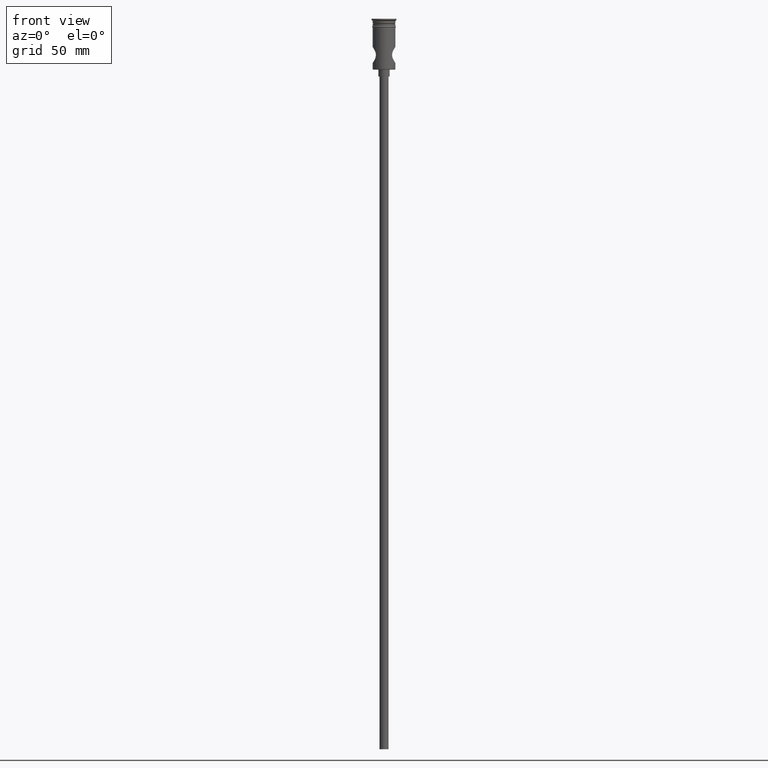
[diagram: clean part render]
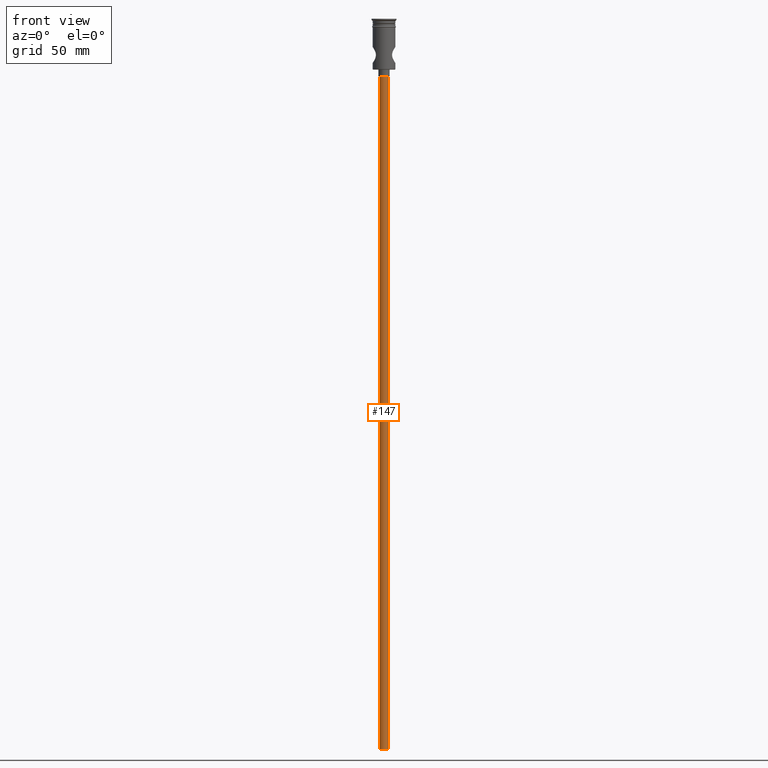
[diagram: same view with one face highlighted and labeled with its STEP entity id]
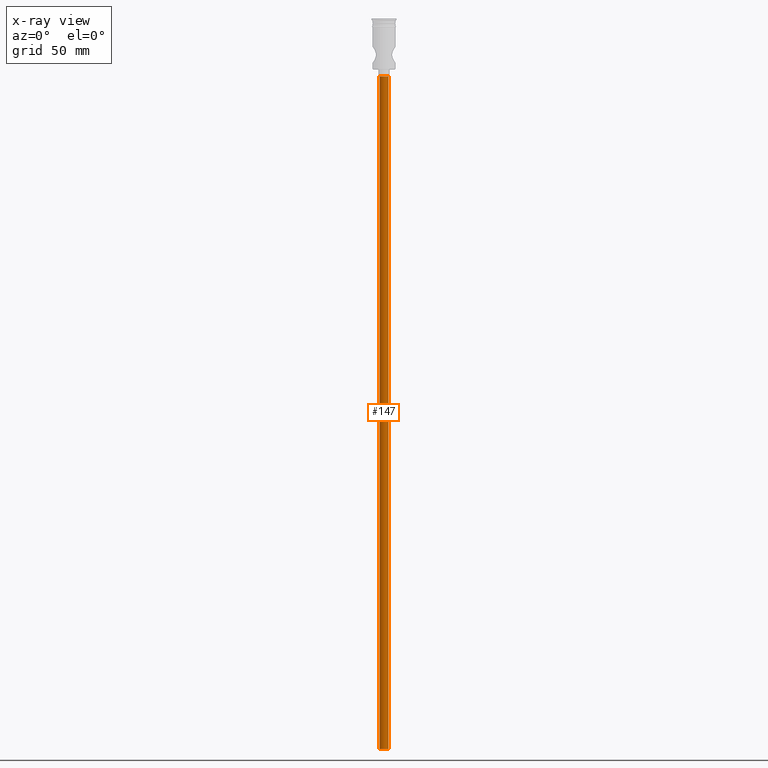
[diagram: x-ray of the same camera — body ghosted, the highlighted face saturated]
A machine part, front view. The second image highlights one B-rep face of the part: STEP entity #147.
The next image is the same camera in x-ray: the body ghosted, the highlighted face saturated — about 0% of this face is hidden behind the body in this view.
In plain terms, the highlighted cylindrical surface (edge-blend (fillet) strip) has radius 2 mm, axis along (-0, -0, 1).
Its self-contained STEP definition (entity closure, byte-faithful):
#14 = LINE ( 'NONE', #908, #407 ) ;
#21 = CARTESIAN_POINT ( 'NONE',  ( -2.000000000000000000, 2.449293598294706414E-16, -322.5000000000000000 ) ) ;
#137 = VECTOR ( 'NONE', #1257, 1000.000000000000000 ) ;
#147 = ADVANCED_FACE ( 'NONE', ( #311 ), #883, .T. ) ;
#176 = CIRCLE ( 'NONE', #519, 2.000000000000000000 ) ;
#216 = VERTEX_POINT ( 'NONE', #801 ) ;
#270 = DIRECTION ( 'NONE',  ( 0.000000000000000000, 0.000000000000000000, -1.000000000000000000 ) ) ;
#311 = FACE_OUTER_BOUND ( 'NONE', #715, .T. ) ;
#339 = DIRECTION ( 'NONE',  ( -0.000000000000000000, -0.000000000000000000, 1.000000000000000000 ) ) ;
#374 = EDGE_CURVE ( 'NONE', #216, #485, #176, .T. ) ;
#407 = VECTOR ( 'NONE', #339, 1000.000000000000000 ) ;
#485 = VERTEX_POINT ( 'NONE', #21 ) ;
#486 = CARTESIAN_POINT ( 'NONE',  ( 0.000000000000000000, 0.000000000000000000, -25.50000000000000000 ) ) ;
#519 = AXIS2_PLACEMENT_3D ( 'NONE', #596, #1025, #826 ) ;
#592 = EDGE_CURVE ( 'NONE', #1150, #1190, #677, .T. ) ;
#596 = CARTESIAN_POINT ( 'NONE',  ( 0.000000000000000000, 0.000000000000000000, -322.5000000000000000 ) ) ;
#643 = CARTESIAN_POINT ( 'NONE',  ( 0.000000000000000000, 0.000000000000000000, -322.5000000000000000 ) ) ;
#676 = CARTESIAN_POINT ( 'NONE',  ( -2.000000000000000000, 2.449293598294706414E-16, -25.50000000000000000 ) ) ;
#677 = CIRCLE ( 'NONE', #1315, 2.000000000000000000 ) ;
#715 = EDGE_LOOP ( 'NONE', ( #1283, #819, #1102, #931 ) ) ;
#799 = CARTESIAN_POINT ( 'NONE',  ( -2.000000000000000000, 2.449293598294706414E-16, -322.5000000000000000 ) ) ;
#801 = CARTESIAN_POINT ( 'NONE',  ( 2.000000000000000000, 0.000000000000000000, -322.5000000000000000 ) ) ;
#819 = ORIENTED_EDGE ( 'NONE', *, *, #374, .F. ) ;
#823 = DIRECTION ( 'NONE',  ( -1.000000000000000000, 0.000000000000000000, 0.000000000000000000 ) ) ;
#826 = DIRECTION ( 'NONE',  ( -1.000000000000000000, 0.000000000000000000, 0.000000000000000000 ) ) ;
#883 = CYLINDRICAL_SURFACE ( 'NONE', #1292, 2.000000000000000000 ) ;
#908 = CARTESIAN_POINT ( 'NONE',  ( 2.000000000000000000, 0.000000000000000000, -322.5000000000000000 ) ) ;
#931 = ORIENTED_EDGE ( 'NONE', *, *, #592, .T. ) ;
#1025 = DIRECTION ( 'NONE',  ( 0.000000000000000000, 0.000000000000000000, -1.000000000000000000 ) ) ;
#1098 = EDGE_CURVE ( 'NONE', #216, #1150, #14, .T. ) ;
#1102 = ORIENTED_EDGE ( 'NONE', *, *, #1098, .T. ) ;
#1139 = LINE ( 'NONE', #799, #137 ) ;
#1150 = VERTEX_POINT ( 'NONE', #1374 ) ;
#1169 = EDGE_CURVE ( 'NONE', #485, #1190, #1139, .T. ) ;
#1190 = VERTEX_POINT ( 'NONE', #676 ) ;
#1215 = DIRECTION ( 'NONE',  ( -0.000000000000000000, -0.000000000000000000, 1.000000000000000000 ) ) ;
#1257 = DIRECTION ( 'NONE',  ( -0.000000000000000000, -0.000000000000000000, 1.000000000000000000 ) ) ;
#1283 = ORIENTED_EDGE ( 'NONE', *, *, #1169, .F. ) ;
#1292 = AXIS2_PLACEMENT_3D ( 'NONE', #643, #1215, #1444 ) ;
#1315 = AXIS2_PLACEMENT_3D ( 'NONE', #486, #270, #823 ) ;
#1374 = CARTESIAN_POINT ( 'NONE',  ( 2.000000000000000000, 0.000000000000000000, -25.50000000000000000 ) ) ;
#1444 = DIRECTION ( 'NONE',  ( 1.000000000000000000, 0.000000000000000000, 0.000000000000000000 ) ) ;